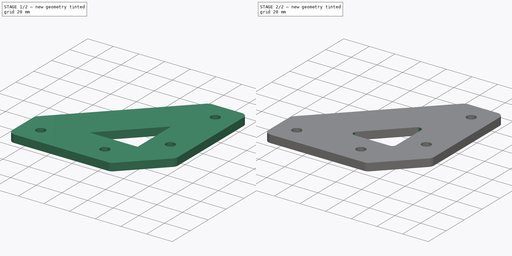
[diagram: build sequence overview — one tinted view per stage of 2, left to right]
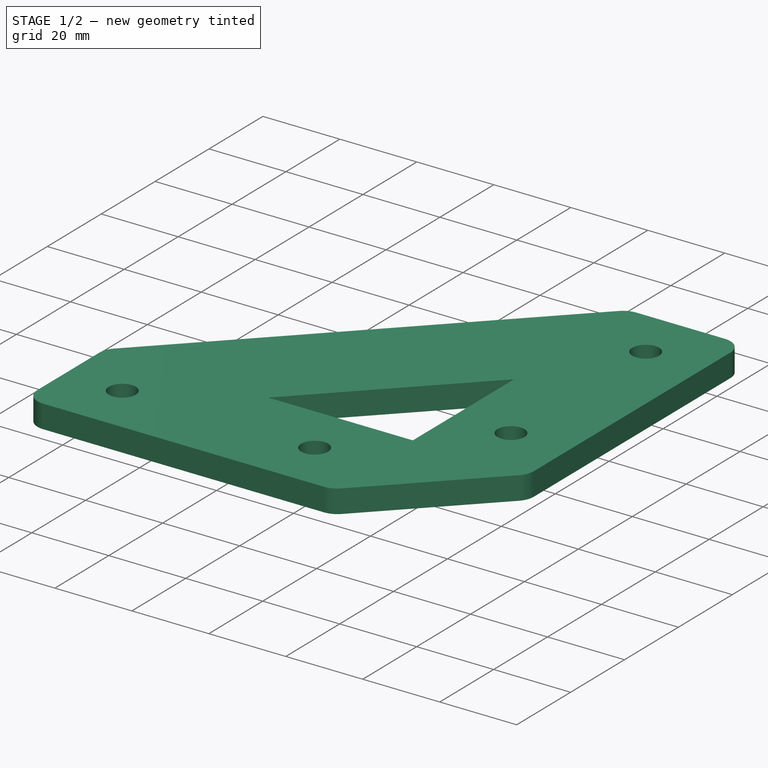
[diagram: stage 1 of 2 — iso view after this stage's code; geometry added in this stage tinted green]
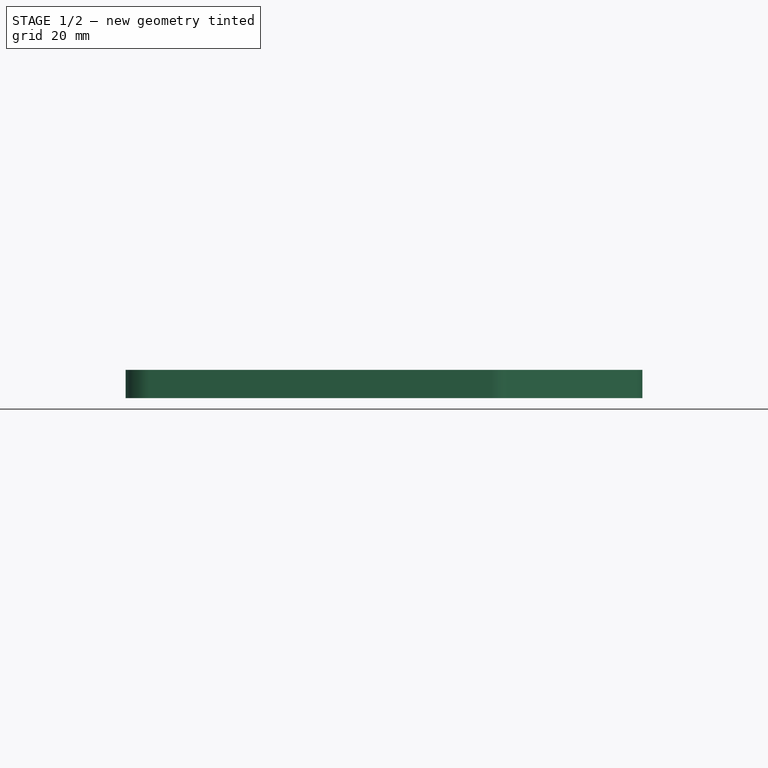
[diagram: stage 1 of 2 — front view after this stage's code; geometry added in this stage tinted green]
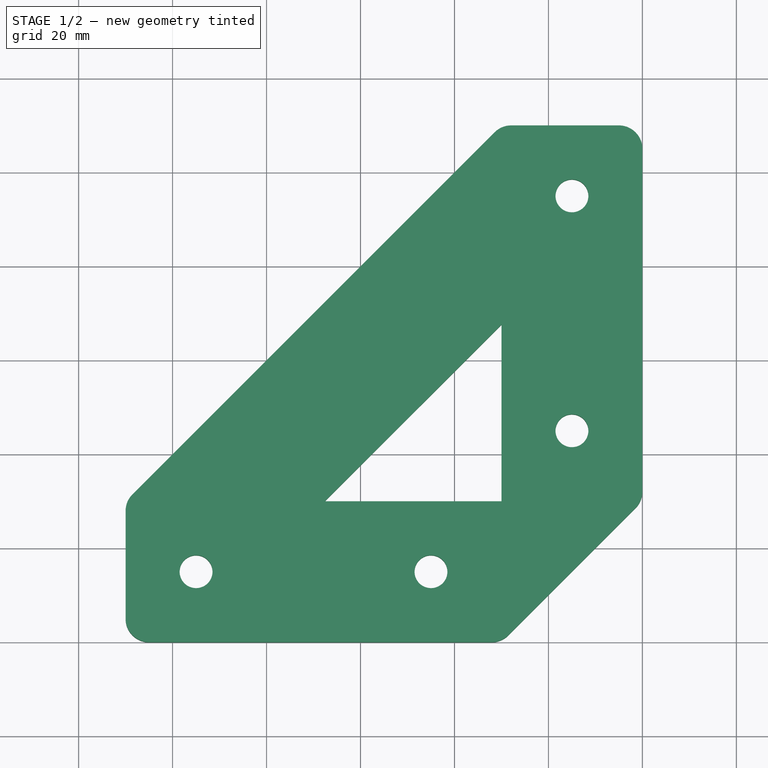
[diagram: stage 1 of 2 — top view after this stage's code; geometry added in this stage tinted green]
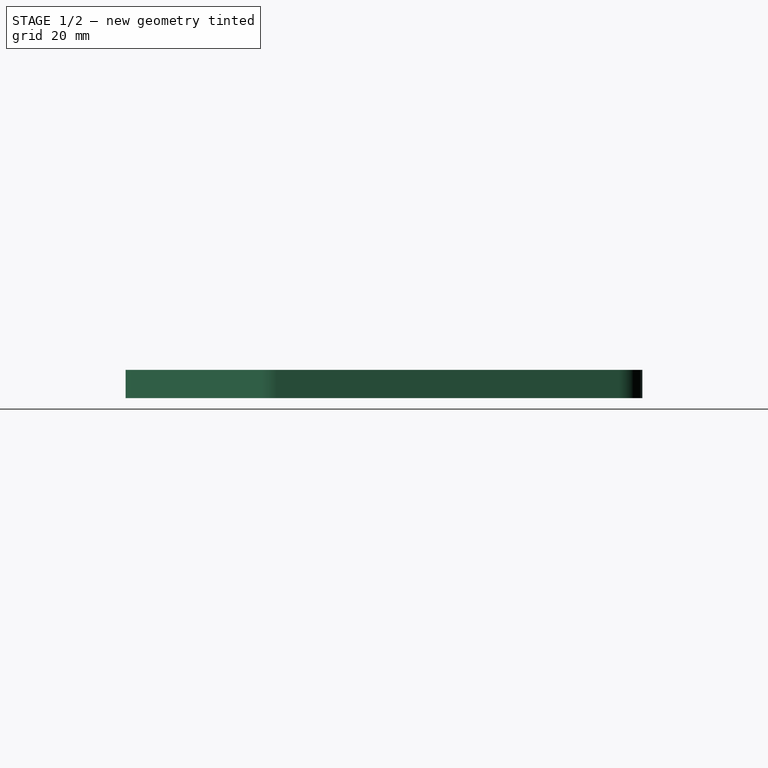
[diagram: stage 1 of 2 — right view after this stage's code; geometry added in this stage tinted green]
FCSTD DOCUMENT  (FreeCAD 0.21R33771 (Git))
Label: triangularConnector
License: All rights reserved
LicenseURL: http://en.wikipedia.org/wiki/All_rights_reserved
objects: PartDesign::Fillet×2, Sketcher::SketchObject×1, PartDesign::Pad×1, PartDesign::Body×1
note: 8 computed .brp shape members not serialized (recipe doc carries the construction recipe); baked Part::Feature solids carry a one-line shape summary decoded from their .brp

FEATURE [Sketcher::SketchObject] Sketch
  FullyConstrained = true
  MapMode = 5
  Support = -> [XY_Plane]
  sketch-geometry (22):
    g0: LineSegment StartX=-110 StartY=30 StartZ=0 EndX=-30 EndY=30 EndZ=0
    g1: LineSegment StartX=-30 StartY=30 StartZ=0 EndX=-30 EndY=0 EndZ=0
    g2: LineSegment StartX=-30 StartY=0 StartZ=0 EndX=-110 EndY=0 EndZ=0
    g3: LineSegment StartX=-110 StartY=0 StartZ=0 EndX=-110 EndY=30 EndZ=0
    g4: LineSegment StartX=-30 StartY=30 StartZ=0 EndX=0 EndY=30 EndZ=0
    g5: LineSegment StartX=-4e-16 StartY=30 StartZ=0 EndX=-4e-16 EndY=110 EndZ=0
    g6: LineSegment StartX=-4e-16 StartY=110 StartZ=0 EndX=-30 EndY=110 EndZ=0
    g7: LineSegment StartX=-30 StartY=110 StartZ=0 EndX=-30 EndY=30 EndZ=0
    g8: LineSegment StartX=-110 StartY=30 StartZ=0 EndX=-30 EndY=110 EndZ=0
    g9: LineSegment StartX=-30 StartY=67.5736 StartZ=0 EndX=-67.5736 EndY=30 EndZ=0
    g10: LineSegment StartX=-67.5736 StartY=30 StartZ=0 EndX=-88.7868 EndY=51.2132 EndZ=0
    g11: Circle CenterX=-95 CenterY=15 CenterZ=0 NormalX=0 NormalY=0 NormalZ=1 AngleXU=0 Radius=3.5
    g12: Circle CenterX=-45 CenterY=15 CenterZ=0 NormalX=0 NormalY=0 NormalZ=1 AngleXU=0 Radius=3.5
    g13: Circle CenterX=-15 CenterY=45 CenterZ=0 NormalX=0 NormalY=0 NormalZ=1 AngleXU=0 Radius=3.5
    g14: Circle CenterX=-15 CenterY=95 CenterZ=0 NormalX=0 NormalY=0 NormalZ=1 AngleXU=0 Radius=3.5
    g15: LineSegment StartX=-95 StartY=15 StartZ=0 EndX=-45 EndY=15 EndZ=0
    g16: LineSegment StartX=-15 StartY=95 StartZ=0 EndX=-15 EndY=45 EndZ=0
    g17: Circle CenterX=-95 CenterY=15 CenterZ=0 NormalX=0 NormalY=0 NormalZ=1 AngleXU=0 Radius=15
    g18: Circle CenterX=-15 CenterY=95 CenterZ=0 NormalX=0 NormalY=0 NormalZ=1 AngleXU=0 Radius=15
    g19: LineSegment StartX=-30 StartY=0 StartZ=0 EndX=-4e-16 EndY=30 EndZ=0
    g20: LineSegment StartX=-67.5736 StartY=30 StartZ=0 EndX=-30 EndY=30 EndZ=0
    g21: LineSegment StartX=-30 StartY=30 StartZ=0 EndX=-30 EndY=67.5736 EndZ=0
  constraints (58):
    c: Coincident(g0,g1)
    c: Coincident(g1,g2)
    c: Coincident(g2,g3)
    c: Coincident(g3,g0)
    c: Horizontal(g0)
    c: Horizontal(g2)
    c: Vertical(g1)
    c: Vertical(g3)
    c: PointOnObject(g1,g-1)
    c: Coincident(g4,g5)
    c: Coincident(g5,g6)
    c: Coincident(g6,g7)
    c: Coincident(g7,g4)
    c: Horizontal(g4)
    c: Horizontal(g6)
    c: Vertical(g5)
    c: Vertical(g7)
    c: Coincident(g4,g0)
    c: PointOnObject(g5,g-2)
    c: Coincident(g8,g0)
    c: Coincident(g8,g6)
    c: PointOnObject(g9,g7)
    c: PointOnObject(g9,g0)
    c: PointOnObject(g10,g8)
    c: Coincident(g9,g10)
    c: Perpendicular(g8,g10)
    c: Parallel(g8,g9)
    c: Equal(g0,g7)
    c: Equal(g1,g4)
    c: Equal(g4,g10)
    c: Distance(g1) = 30
    c: Equal(g13,g14)
    c: Equal(g14,g12)
    c: Equal(g12,g11)
    c: Diameter(g14) = 7
    c: Coincident(g15,g11)
    c: Coincident(g15,g12)
    c: Horizontal(g15)
    c: Coincident(g16,g14)
    c: Coincident(g16,g13)
    c: Vertical(g16)
    c: Coincident(g17,g11)
    c: Tangent(g17,g0)
    c: Tangent(g17,g3)
    c: Tangent(g17,g2)
    c: Distance(g2) = 80
    c: Distance(g15) = 50
    c: Coincident(g18,g14)
    c: Tangent(g18,g6)
    c: Tangent(g18,g7)
    c: Tangent(g18,g5)
    c: Equal(g16,g15)
    c: Coincident(g19,g2)
    c: Coincident(g19,g5)
    c: Coincident(g20,g9)
    c: Coincident(g20,g0)
    c: Coincident(g21,g20)
    c: Coincident(g21,g9)
FEATURE [PartDesign::Pad] Pad
  Direction = (0,0,1)
  Length = 6
  Length2 = 10
  Profile = -> Sketch
  ReferenceAxis = -> Sketch [N_Axis]
  Refine = true
  Type = 0
FEATURE [PartDesign::Fillet] Fillet
  Base = -> Pad [Edge2,Edge5,Edge8,Edge11,Edge14,Edge1]
  BaseFeature = -> Pad
  Radius = 5
  Refine = true
  SupportTransform = false
  UseAllEdges = false
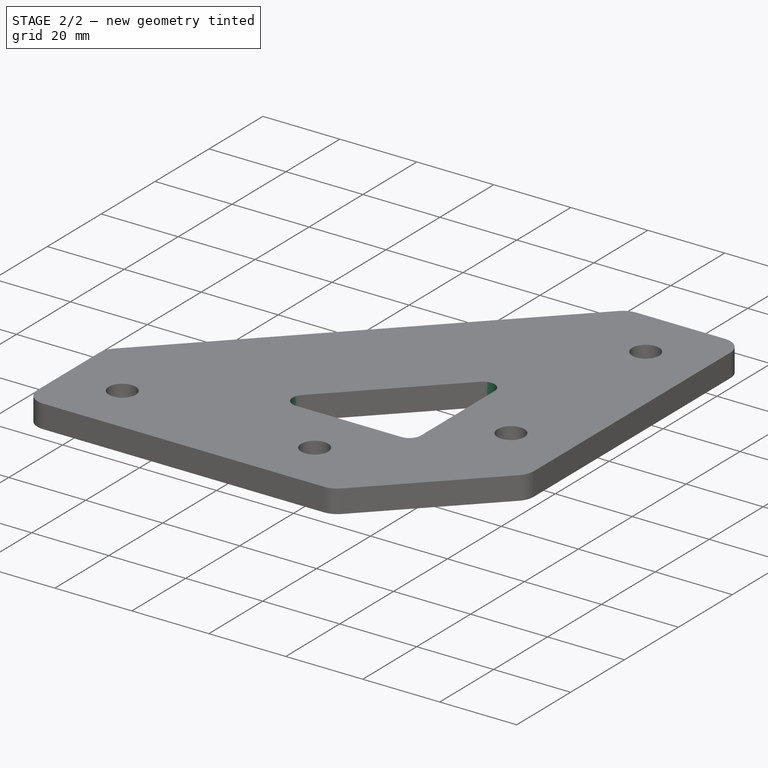
[diagram: stage 2 of 2 — iso view after this stage's code; geometry added in this stage tinted green]
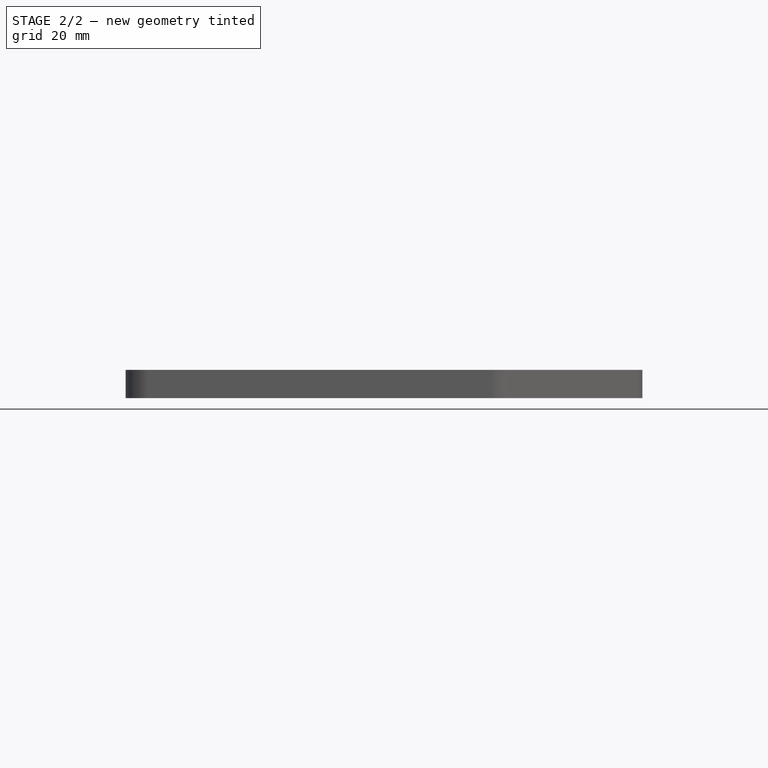
[diagram: stage 2 of 2 — front view after this stage's code; geometry added in this stage tinted green]
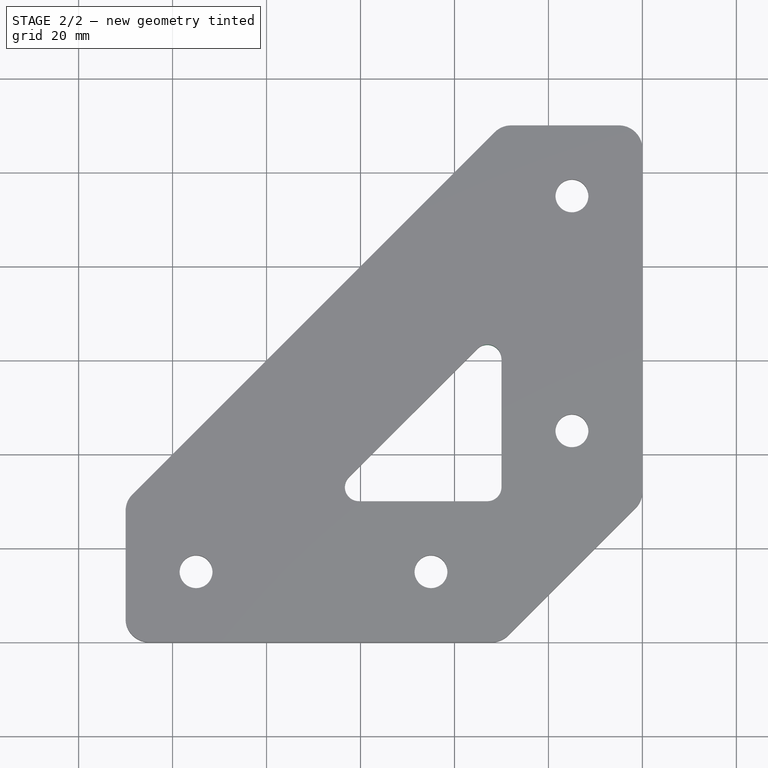
[diagram: stage 2 of 2 — top view after this stage's code; geometry added in this stage tinted green]
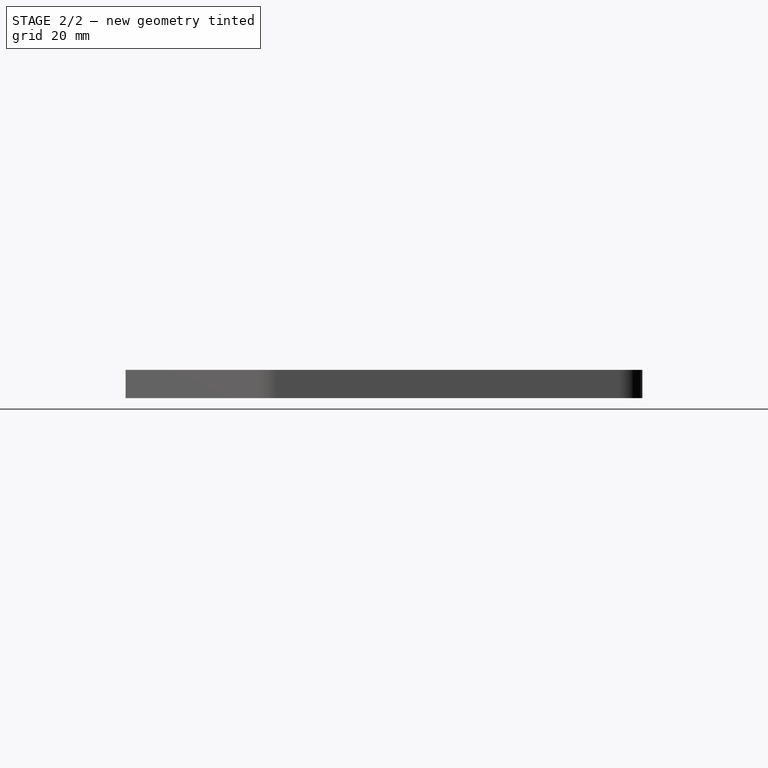
[diagram: stage 2 of 2 — right view after this stage's code; geometry added in this stage tinted green]
FEATURE [PartDesign::Fillet] Fillet001
  Base = -> Fillet [Edge52,Edge51,Edge53]
  BaseFeature = -> Fillet
  Radius = 3
  Refine = true
  SupportTransform = false
  UseAllEdges = false
FEATURE [PartDesign::Body] Body
  Group = -> [Sketch,Pad,Fillet,Fillet001]
  Origin = -> Origin
  Tip = -> Fillet001
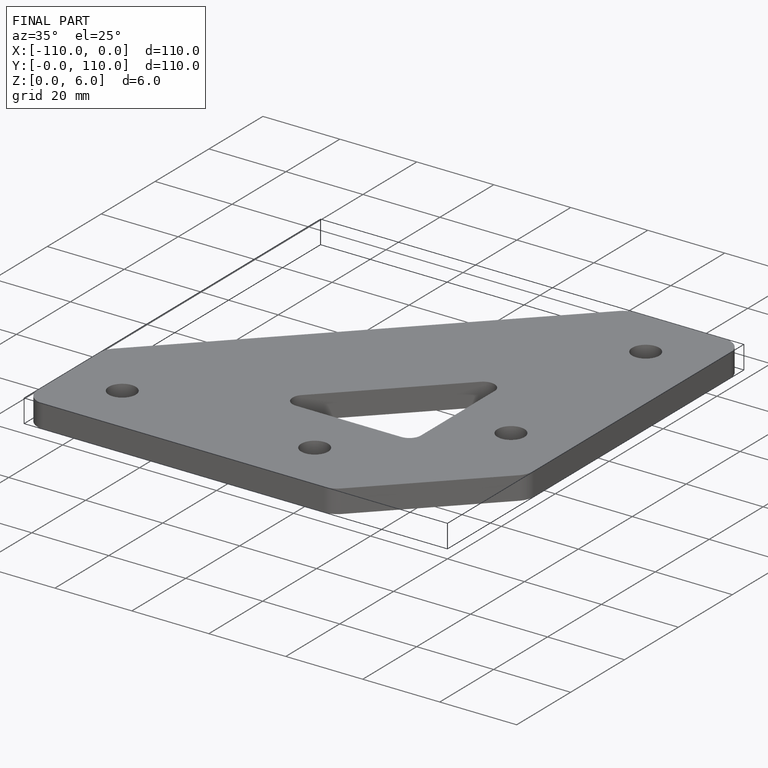
[diagram: finished part — iso view with bounding-box wireframe]
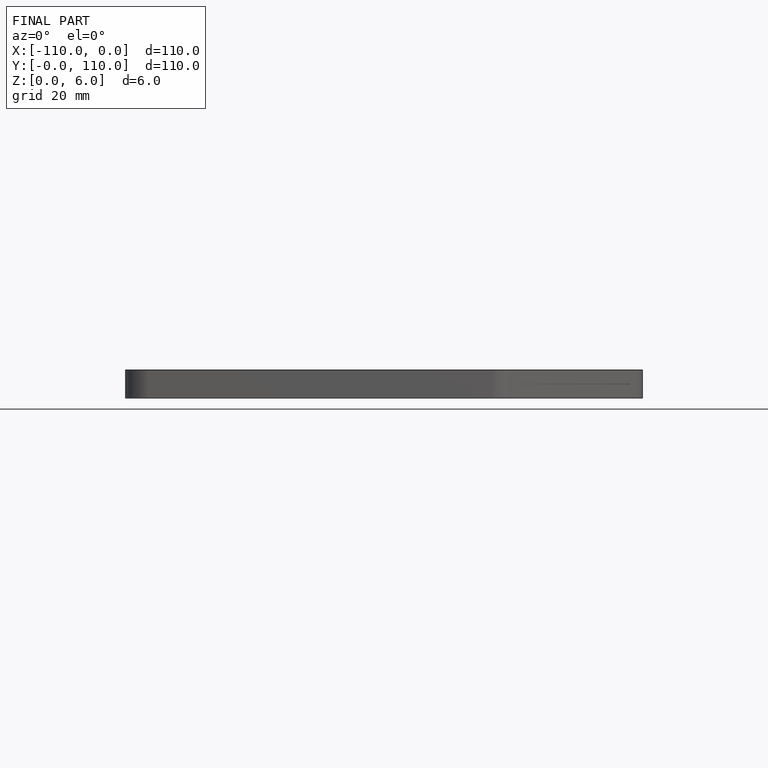
[diagram: finished part — front view with bounding-box wireframe]
